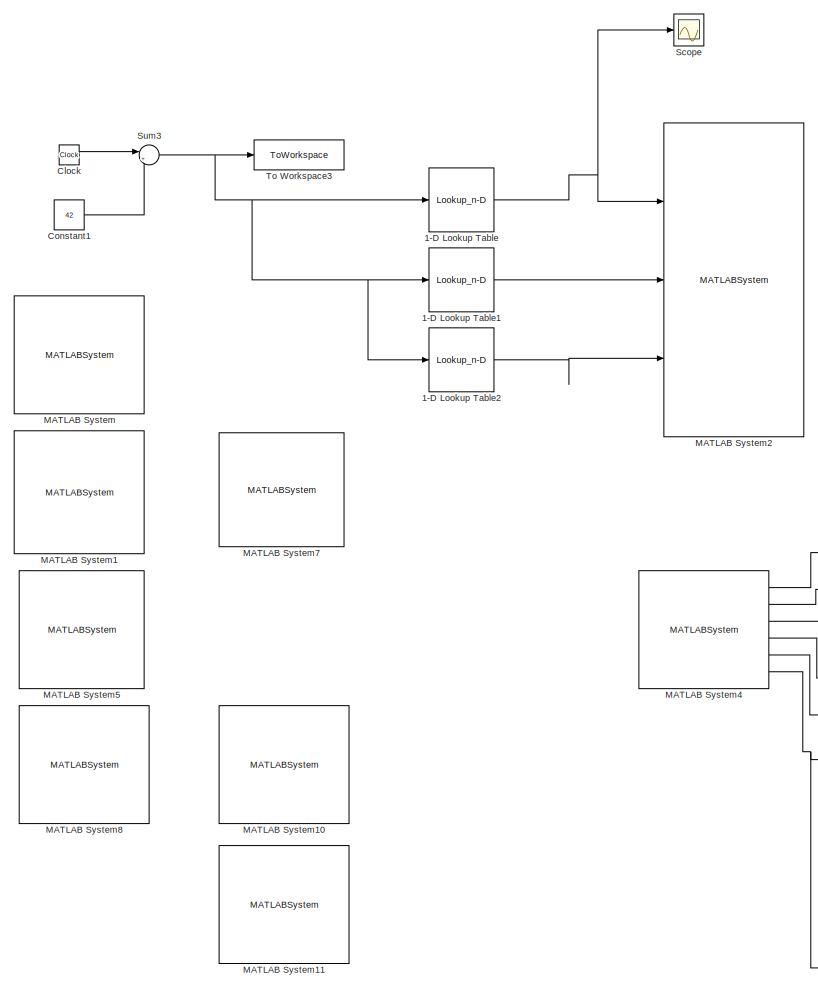
[diagram: root canvas - part 1/3, center side, full height]
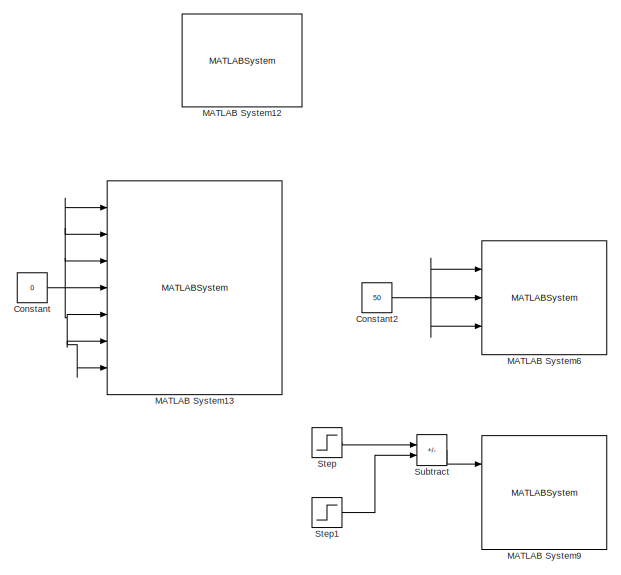
[diagram: root canvas - part 2/3, middle left region]
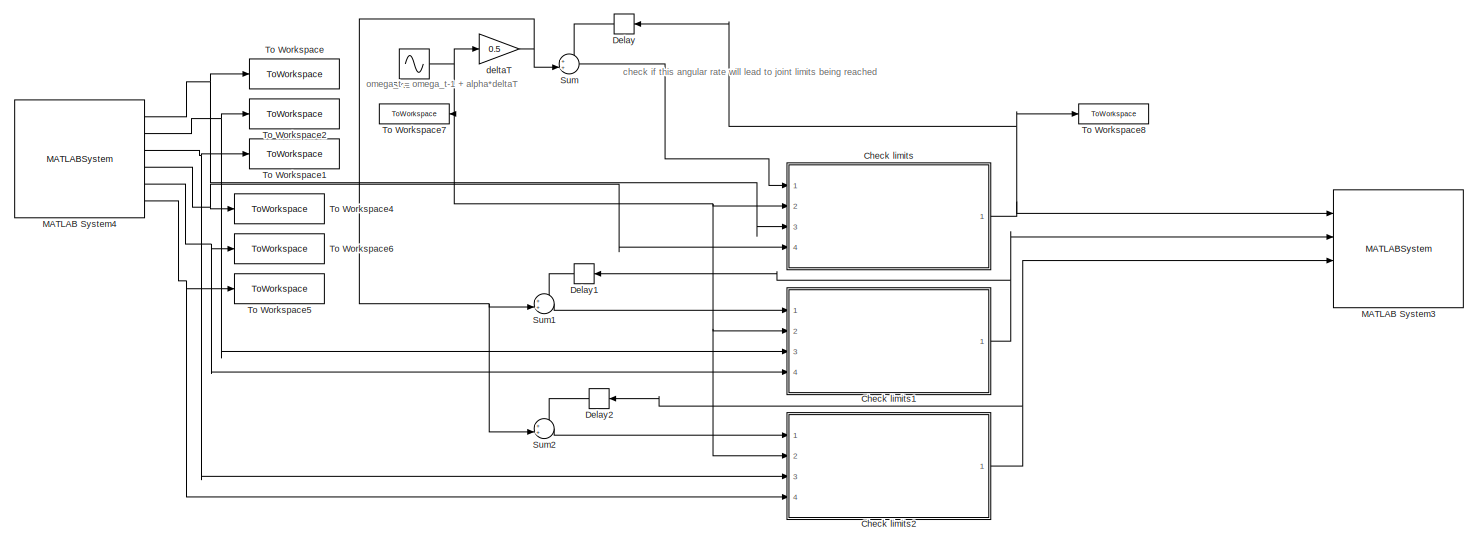
[diagram: root canvas - part 3/3, bottom right region]
MODEL slx_13d04f0c78f7
KIND model
CONFIG AbsTol = auto
CONFIG EnableMultiTasking = on
CONFIG FixedStep = 0.5
CONFIG MaxStep = auto
CONFIG MinStep = auto
CONFIG RelTol = 1e-3
CONFIG SampleTimeConstraint = Unconstrained
CONFIG Solver = FixedStepAuto
CONFIG SolverName = FixedStepAuto
CONFIG StartTime = 0.0
CONFIG StopTime = 30
BLOCK [Lookup_n-D] 1-D Lookup Table
  BreakpointsForDimension1 = [42\n42.01112133\n42.03727126\n42.07834039\n42.13428459\n42.20504754\n42.29055854\n42.39073228\n42.5054689\n42.63465399\n42.77815879\n42.93584024\n43.10754115\n43.29309037\n43.49230294\n43.70498028\n43.93091039\n44.16986804\n44.42161506\n44.68590048\n44.96246087\n45.25102053\n45.55129184\n45.86297547\n46.18576072\n46.51932585\n46.86333834\n47.21745527\n47.58132366\n47.95458079\n48.33685459\n48.727764\n49.12691936\n49.53392277\n49....<+776ch>  <repeated x3 — deduplicated; at blocks: 1-D Lookup Table, 1-D Lookup Table1, 1-D Lookup Table2>
  Commented = on
  InternalRulePriority = Speed
  NumberOfTableDimensions = 1
  Ports = [1, 1]
  RndMeth = Simplest
  Table = [1.570796327\n1.570792957\n1.570647694\n1.56961565\n1.567632601\n1.56219496\n1.557494298\n1.549269077\n1.544187815\n1.533149542\n1.522693414\n1.496131515\n1.446175572\n1.373291416\n1.270392573\n1.167493418\n1.052460989\n0.935207834\n0.807889258\n0.677163853\n0.538528963\n0.394913096\n0.249656169\n0.099916299\n-0.053813644\n-0.205103655\n-0.380299244\n-0.546735993\n-0.717860815\n-0.811444171\n-0.923417052\n-0.9559831\n-0.83338236...<+817ch>
BLOCK [Lookup_n-D] 1-D Lookup Table1
  Commented = on
  InternalRulePriority = Speed
  NumberOfTableDimensions = 1
  Ports = [1, 1]
  RndMeth = Simplest
  Table = [1.57079632679490\n1.57079662136271\n1.57035858393418\n1.56955473957150\n1.56795883023701\n1.56855196252543\n1.56956191136717\n1.57072970527338\n1.57079005485722\n1.56948791223666\n1.55119006552306\n1.55836585845583\n1.57077777185491\n1.57077149370545\n1.57076310797240\n1.57036928804412\n1.57074947684855\n1.56898331366692\n1.57073740451593\n1.56257826917437\n1.57072974696569\n1.56230742665956\n1.57073312881541\n1.563607...<+1403ch>
BLOCK [Lookup_n-D] 1-D Lookup Table2
  Commented = on
  InternalRulePriority = Speed
  NumberOfTableDimensions = 1
  Ports = [1, 1]
  RndMeth = Simplest
  Table = [-1.10360555189321e-17\n-0.000682555954124297\n-0.000504375242443253\n0.00336297359381415\n0.0137095670724727\n0.0252677971790659\n0.0446557220510096\n0.0672113326003172\n0.0999781977666613\n0.137287456967193\n0.189071248486376\n0.272294508037825\n0.355665679231944\n0.446845913729827\n0.544137284526667\n0.639346413276106\n0.732541458867562\n0.808938354869002\n0.855848674103189\n0.891616122311551\n0.876064789878543\n0....<+1474ch>
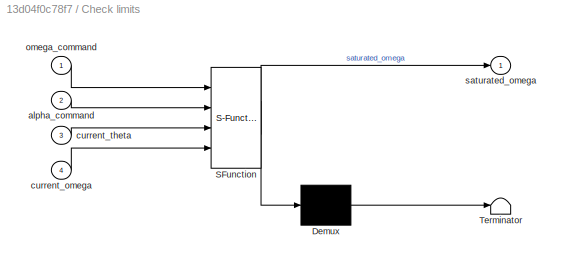
BLOCK [SubSystem] Check limits
  ErrorFcn = Stateflow.Translate.translate
  PermitHierarchicalResolution = ExplicitOnly
  Ports = [4, 1]
  RequestExecContextInheritance = off
  SFBlockType = MATLAB Function
  TreatAsAtomicUnit = on
BLOCK [Demux] Check limits/ Demux 
  Outputs = 1
  Ports = [1, 1]
BLOCK [S-Function] Check limits/ SFunction 
  EnableBusSupport = on
  FunctionName = sf_sfun
  Parameters = maxOmega,serverRate
  PortCounts = [4 2]
  Ports = [4, 2]
  SFcnIsStateOwnerBlock = off
  SFunctionDeploymentMode = off
  Tag = Stateflow S-Function 2
BLOCK [Terminator] Check limits/ Terminator 
BLOCK [Inport] Check limits/alpha_command
  Port = 2
BLOCK [Inport] Check limits/current_omega
  Port = 4
BLOCK [Inport] Check limits/current_theta
  Port = 3
BLOCK [Inport] Check limits/omega_command
BLOCK [Outport] Check limits/saturated_omega
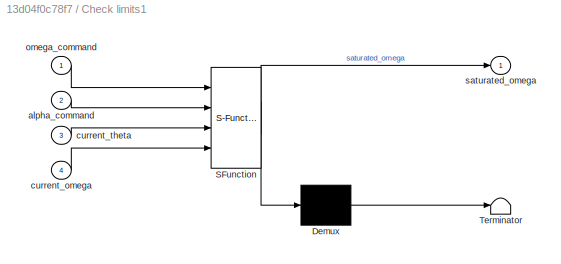
BLOCK [SubSystem] Check limits1
  ErrorFcn = Stateflow.Translate.translate
  PermitHierarchicalResolution = ExplicitOnly
  Ports = [4, 1]
  RequestExecContextInheritance = off
  SFBlockType = MATLAB Function
  TreatAsAtomicUnit = on
BLOCK [Demux] Check limits1/ Demux 
  Outputs = 1
  Ports = [1, 1]
BLOCK [S-Function] Check limits1/ SFunction 
  EnableBusSupport = on
  FunctionName = sf_sfun
  Parameters = maxOmega,serverRate
  PortCounts = [4 2]
  Ports = [4, 2]
  SFcnIsStateOwnerBlock = off
  SFunctionDeploymentMode = off
  Tag = Stateflow S-Function 1
BLOCK [Terminator] Check limits1/ Terminator 
BLOCK [Inport] Check limits1/alpha_command
  Port = 2
BLOCK [Inport] Check limits1/current_omega
  Port = 4
BLOCK [Inport] Check limits1/current_theta
  Port = 3
BLOCK [Inport] Check limits1/omega_command
BLOCK [Outport] Check limits1/saturated_omega
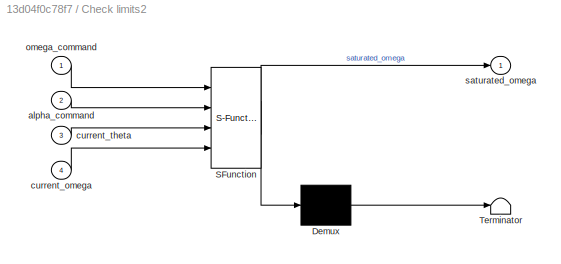
BLOCK [SubSystem] Check limits2
  ErrorFcn = Stateflow.Translate.translate
  PermitHierarchicalResolution = ExplicitOnly
  Ports = [4, 1]
  RequestExecContextInheritance = off
  SFBlockType = MATLAB Function
  TreatAsAtomicUnit = on
BLOCK [Demux] Check limits2/ Demux 
  Outputs = 1
  Ports = [1, 1]
BLOCK [S-Function] Check limits2/ SFunction 
  EnableBusSupport = on
  FunctionName = sf_sfun
  Parameters = maxOmega,serverRate
  PortCounts = [4 2]
  Ports = [4, 2]
  SFcnIsStateOwnerBlock = off
  SFunctionDeploymentMode = off
  Tag = Stateflow S-Function 3
BLOCK [Terminator] Check limits2/ Terminator 
BLOCK [Inport] Check limits2/alpha_command
  Port = 2
BLOCK [Inport] Check limits2/current_omega
  Port = 4
BLOCK [Inport] Check limits2/current_theta
  Port = 3
BLOCK [Inport] Check limits2/omega_command
BLOCK [Outport] Check limits2/saturated_omega
BLOCK [Clock] Clock
  Commented = on
BLOCK [Constant] Constant
  Commented = on
  Value = 0
BLOCK [Constant] Constant1
  Commented = on
  Value = 42
BLOCK [Constant] Constant2
  Commented = on
  Value = 50
BLOCK [Delay] Delay
  DelayLength = 1
  InputPortMap = u0
  NameLocation = top
  Ports = [1, 1]
BLOCK [Delay] Delay1
  DelayLength = 1
  InputPortMap = u0
  NameLocation = top
  Ports = [1, 1]
BLOCK [Delay] Delay2
  DelayLength = 1
  InputPortMap = u0
  NameLocation = top
  Ports = [1, 1]
BLOCK [MATLABSystem] MATLAB System
  Commented = on
  D_GAIN = 200
  I_GAIN = 0
  MAX_POSITION = 3072
  MIN_POSITION = 1024
  MOVE_TIME = 500
  MaskDisplay = disp('InitializeForPosition');
  MaskType = InitializeForPosition
  P_GAIN = 400
  Ports = []
  System = InitializeForPosition
BLOCK [MATLABSystem] MATLAB System1
  I_GAIN = 1920
  MaskDisplay = disp('InitializeForSpeed');
  MaskType = InitializeForSpeed
  P_GAIN = 100
  Ports = []
  System = InitializeForSpeed
  VELOCITY_LIMIT = 22
BLOCK [MATLABSystem] MATLAB System10
  CURRENT_LIMIT = 850
  Commented = on
  D_GAIN = 200
  I_GAIN = 0
  MAX_POSITION = 3072
  MIN_POSITION = 1024
  MaskDisplay = disp('InitializeForSpecial');
  MaskType = InitializeForSpecial
  P_GAIN = 400
  Ports = []
  System = InitializeForSpecial
  VELOCITY_LIMIT = 0
BLOCK [MATLABSystem] MATLAB System11
  Commented = on
  MaskDisplay = disp('MoveArm_Special');\nport_label('input',1,'u1');\nport_label('input',2,'u2');\nport_label('input',3,'u3');
  MaskType = MoveArm_Special
  Ports = [3]
  System = MoveArm_Special
BLOCK [MATLABSystem] MATLAB System12
  Commented = on
  D_GAIN_ARM = 200
  D_GAIN_DIST = 200
  D_GAIN_PROX = 200
  I_GAIN_ARM = 0
  I_GAIN_DIST = 0
  I_GAIN_PROX = 0
  MAX_CURRENT_GRIP = 1000
  MAX_POSITION_ARM = 3072
  MAX_POSITION_DIST = 3072
  MAX_POSITION_PROX = 3072
  MIN_POSITION_ARM = 1024
  MIN_POSITION_DIST = 1024
  MIN_POSITION_PROX = 1024
  MaskDisplay = disp('InitializeForArmGripper');
  MaskType = InitializeForArmGripper
  P_GAIN_ARM = 400
  P_GAIN_DIST = 400
  P_GAIN_PROX = 400
  Ports = []
  System = InitializeForArmGripper
  VELOCITY_LIMIT_ARM = 0
  VELOCITY_LIMIT_GRIP = 0
BLOCK [MATLABSystem] MATLAB System13
  Commented = on
  MaskDisplay = disp('MoveArmGripper_Position');\nport_label('input',1,'u1');\nport_label('input',2,'u2');\nport_label('input',3,'u3');\nport_label('input',4,'uL1');\nport_label('input',5,'uR1');\nport_label('input',6,'uL2');\nport_label('input',7,'uR2');
  MaskType = MoveArmGripper_Position
  Ports = [7]
  System = MoveArmGripper_Position
BLOCK [MATLABSystem] MATLAB System2
  Commented = on
  MaskDisplay = disp('MoveArm_Position');\nport_label('input',1,'u1');\nport_label('input',2,'u2');\nport_label('input',3,'u3');
  MaskType = MoveArm_Position
  Ports = [3]
  System = MoveArm_Position
BLOCK [MATLABSystem] MATLAB System3
  MaskDisplay = disp('MoveArm_Speed');\nport_label('input',1,'u1');\nport_label('input',2,'u2');\nport_label('input',3,'u3');\nport_label('input',4,'accel_time');
  MaskType = MoveArm_Speed
  Ports = [4]
  System = MoveArm_Speed
BLOCK [MATLABSystem] MATLAB System4
  MaskDisplay = disp('ReadArm_Position_Rates');\nport_label('output',1,'theta1');\nport_label('output',2,'theta2');\nport_label('output',3,'theta3');\nport_label('output',4,'omega1');\nport_label('output',5,'omega2');\nport_label('output',6,'omega3');
  MaskType = ReadArm_Position_Rates
  Ports = [0, 6]
  SampleTime = 0.5
  System = ReadArm_Position_Rates
BLOCK [MATLABSystem] MATLAB System5
  Commented = on
  MaskDisplay = disp('InitializeForPWM');
  MaskType = InitializeForPWM
  PWM_LIMIT = 885
  Ports = []
  System = InitializeForPWM
BLOCK [MATLABSystem] MATLAB System6
  Commented = on
  MaskDisplay = disp('MoveArm_PWM');\nport_label('input',1,'u1');\nport_label('input',2,'u2');\nport_label('input',3,'u3');
  MaskType = MoveArm_PWM
  Ports = [3]
  System = MoveArm_PWM
BLOCK [MATLABSystem] MATLAB System7
  Commented = on
  MaskDisplay = disp('ReadArm_Load');\nport_label('output',1,'y1');\nport_label('output',2,'y2');\nport_label('output',3,'y3');
  MaskType = ReadArm_Load
  Ports = [0, 3]
  SampleTime = 0.1
  System = ReadArm_Load
BLOCK [MATLABSystem] MATLAB System8
  CURRENT_LIMIT = 850
  Commented = on
  MaskDisplay = disp('InitializeForTorque');
  MaskType = InitializeForTorque
  Ports = []
  System = InitializeForTorque
BLOCK [MATLABSystem] MATLAB System9
  Commented = on
  MaskDisplay = disp('MoveArm_Torque');\nport_label('input',1,'u1');\nport_label('input',2,'u2');\nport_label('input',3,'u3');\nport_label('output',1,'y1');\nport_label('output',2,'y2');\nport_label('output',3,'y3');
  MaskType = MoveArm_Torque
  Ports = [3, 3]
  System = MoveArm_Torque
BLOCK [Scope] Scope
  Commented = on
  Floating = off
  NumInputPorts = 1
  Ports = [1]
  ScopeSpecificationString = Simulink.scopes.TimeScopeBlockCfg('CurrentConfiguration', extmgr.ConfigurationSet(extmgr.Configuration('Core','General UI',true),extmgr.Configuration('Core','Source UI',true),extmgr.Configuration('Sources','WiredSimulink',true),extmgr.Configuration('Visuals','Time Domain',true,'SerializedDisplays',{struct('MinYLimReal','-1.88628','MaxYLimReal','1.95492','YLabelReal','','MinYLimMag','0.00000','MaxY...<+1350ch>
BLOCK [Sin] Sine Wave
  Amplitude = 0.1
  Frequency = 2*pi/40
  Phase = pi/2
  Ports = [0, 1]
  SampleTime = 0.5
BLOCK [Step] Step
  After = 30
  Commented = on
  SampleTime = 0
  Time = 5
BLOCK [Step] Step1
  After = 30
  Commented = on
  SampleTime = 0
  Time = 6
BLOCK [Sum] Subtract
  Commented = on
  IconShape = rectangular
  Inputs = +-
  Ports = [2, 1]
BLOCK [Sum] Sum
  Inputs = ++|
  Ports = [2, 1]
BLOCK [Sum] Sum1
  Inputs = ++|
  Ports = [2, 1]
BLOCK [Sum] Sum2
  Inputs = ++|
  Ports = [2, 1]
BLOCK [Sum] Sum3
  Commented = on
  Inputs = |++
  Ports = [2, 1]
BLOCK [ToWorkspace] To Workspace
  FixptAsFi = on
  MaxDataPoints = inf
  Ports = [1]
  SampleTime = -1
  Save2DSignal = 2-D array (concatenate along first dimension)
  VariableName = theta1
BLOCK [ToWorkspace] To Workspace1
  FixptAsFi = on
  MaxDataPoints = inf
  Ports = [1]
  SampleTime = -1
  Save2DSignal = 2-D array (concatenate along first dimension)
  VariableName = theta3
BLOCK [ToWorkspace] To Workspace2
  FixptAsFi = on
  MaxDataPoints = inf
  Ports = [1]
  SampleTime = -1
  Save2DSignal = 2-D array (concatenate along first dimension)
  VariableName = theta2
BLOCK [ToWorkspace] To Workspace3
  Commented = on
  FixptAsFi = on
  MaxDataPoints = inf
  Ports = [1]
  SampleTime = -1
  VariableName = time
BLOCK [ToWorkspace] To Workspace4
  FixptAsFi = on
  MaxDataPoints = inf
  Ports = [1]
  SampleTime = -1
  Save2DSignal = 2-D array (concatenate along first dimension)
  VariableName = omega1
BLOCK [ToWorkspace] To Workspace5
  FixptAsFi = on
  MaxDataPoints = inf
  Ports = [1]
  SampleTime = -1
  Save2DSignal = 2-D array (concatenate along first dimension)
  VariableName = omega3
BLOCK [ToWorkspace] To Workspace6
  FixptAsFi = on
  MaxDataPoints = inf
  Ports = [1]
  SampleTime = -1
  Save2DSignal = 2-D array (concatenate along first dimension)
  VariableName = omega2
BLOCK [ToWorkspace] To Workspace7
  FixptAsFi = on
  MaxDataPoints = inf
  Ports = [1]
  SampleTime = -1
  VariableName = alpha_command
BLOCK [ToWorkspace] To Workspace8
  FixptAsFi = on
  MaxDataPoints = inf
  Ports = [1]
  SampleTime = -1
  VariableName = omega_command
BLOCK [Gain] deltaT
  Gain = 0.5
ANNOTATION (root): check if this angular rate will lead to joint limits being reached
ANNOTATION (root): omega_t = omega_t-1 + alpha*deltaT
LINE 1-D Lookup Table1:1 -> MATLAB System2:2
LINE 1-D Lookup Table2:1 -> MATLAB System2:3
NET 1-D Lookup Table:1 -> MATLAB System2:1, Scope:1
NET Check limits1:1 -> Delay1:1, MATLAB System3:2
NET Check limits2:1 -> Delay2:1, MATLAB System3:3
NET Check limits:1 -> Delay:1, MATLAB System3:1, To Workspace8:1
LINE Clock:1 -> Sum3:1
LINE Constant1:1 -> Sum3:2
NET Constant2:1 -> MATLAB System6:1, MATLAB System6:2, MATLAB System6:3
NET Constant:1 -> MATLAB System13:1, MATLAB System13:2, MATLAB System13:3, MATLAB System13:4, MATLAB System13:5, MATLAB System13:6, MATLAB System13:7
LINE Delay1:1 -> Sum1:1
LINE Delay2:1 -> Sum2:1
LINE Delay:1 -> Sum:1
NET MATLAB System4:1 -> Check limits:3, To Workspace:1
NET MATLAB System4:2 -> Check limits1:3, To Workspace2:1
NET MATLAB System4:3 -> Check limits2:3, To Workspace1:1
NET MATLAB System4:4 -> Check limits:4, To Workspace4:1
NET MATLAB System4:5 -> Check limits1:4, To Workspace6:1
NET MATLAB System4:6 -> Check limits2:4, To Workspace5:1
NET Sine Wave:1 -> Check limits1:2, Check limits2:2, Check limits:2, To Workspace7:1, deltaT:1
LINE Step1:1 -> Subtract:2
LINE Step:1 -> Subtract:1
LINE Subtract:1 -> MATLAB System9:1
LINE Sum1:1 -> Check limits1:1
LINE Sum2:1 -> Check limits2:1
NET Sum3:1 -> 1-D Lookup Table1:1, 1-D Lookup Table2:1, 1-D Lookup Table:1, To Workspace3:1
LINE Sum:1 -> Check limits:1
NET deltaT:1 -> Sum1:2, Sum2:2, Sum:2
note: NET lines group one-source signal fan-out (src -> all destinations, sorted); 1:1 wires keep LINE
CHART Check limits1 states=1 transitions=1
  STATE_LABEL 'eML_blk_kernel()'
  STATE_LABEL 'SCRIPT:\nfunction saturated_omega = check_limits(omega_command, alpha_command, current_theta, current_omega, serverRate, maxOmega)\n\nbuffer_angle = 0; % [deg]\nnext_theta = current_theta + current_omega * (serverRate) + 0.5 * alpha_command * (serverRate) ^2;\n\nif (((next_theta >= pi/2 - buffer_angle*pi/180) && (omega_command > 0)) || ((next_theta <= -pi/2 + buffer_angle*pi/180) && (omega_command < 0))...<+203ch>'  <repeated x3 — deduplicated; at blocks: Check limits1, Check limits, Check limits2>
CHART Check limits states=1 transitions=1
  STATE_LABEL 'eML_blk_kernel()'
CHART Check limits2 states=1 transitions=1
  STATE_LABEL 'eML_blk_kernel()'
CHART  states=0 transitions=0
CHART  states=0 transitions=0
CHART  states=0 transitions=0
